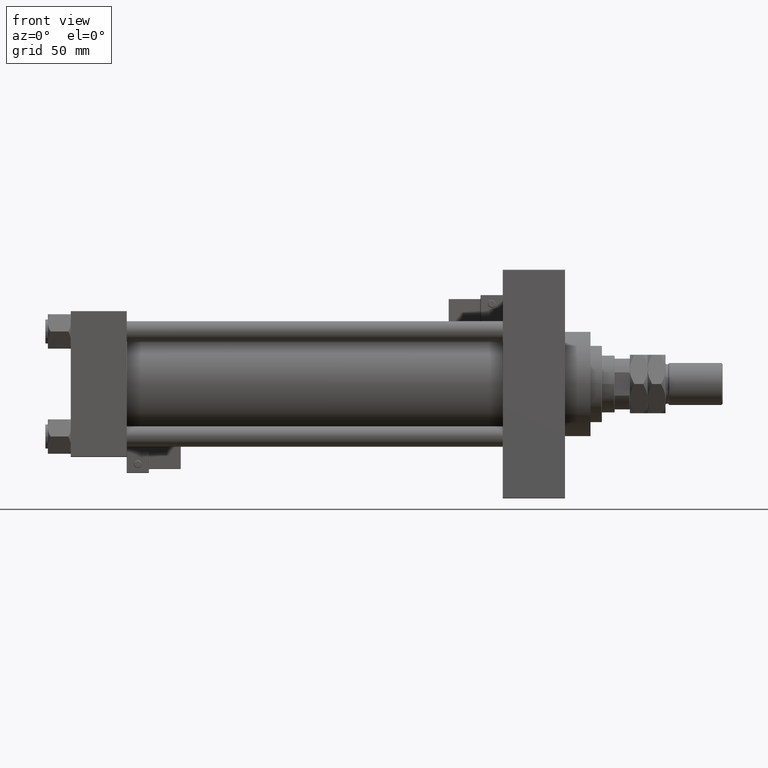
[diagram: clean part render]
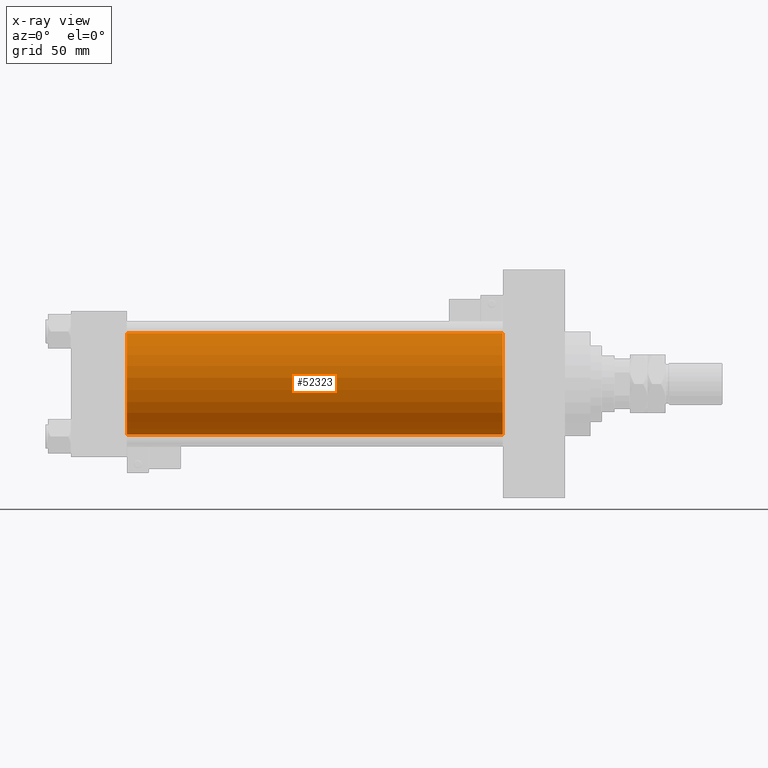
[diagram: x-ray — body ghosted, one internal face saturated and labeled with its STEP entity id]
A machine part, front view, then the same camera in x-ray: the body is ghosted and one INTERNAL B-rep face — a face not visible from any outside direction — is saturated and labeled: STEP entity #52323.
In plain terms, the highlighted cylindrical surface (partial cylindrical patch) has radius 40 mm, axis along (-1, -0, -0).
Its self-contained STEP definition (entity closure, byte-faithful):
#1695 = VERTEX_POINT ( 'NONE', #13229 ) ;
#2798 = FACE_OUTER_BOUND ( 'NONE', #35808, .T. ) ;
#3754 = CARTESIAN_POINT ( 'NONE',  ( 339.9999999999999432, -2.602085213965210642E-15, 40.00000000000000000 ) ) ;
#5821 = VERTEX_POINT ( 'NONE', #49543 ) ;
#12467 = DIRECTION ( 'NONE',  ( 1.000000000000000000, 0.000000000000000000, 0.000000000000000000 ) ) ;
#13229 = CARTESIAN_POINT ( 'NONE',  ( 44.00000000000000000, -2.602085213965210642E-15, 40.00000000000000000 ) ) ;
#14095 = LINE ( 'NONE', #34787, #18145 ) ;
#15341 = DIRECTION ( 'NONE',  ( 0.000000000000000000, 0.000000000000000000, 1.000000000000000000 ) ) ;
#16749 = DIRECTION ( 'NONE',  ( -1.000000000000000000, -0.000000000000000000, -0.000000000000000000 ) ) ;
#18145 = VECTOR ( 'NONE', #48096, 1000.000000000000000 ) ;
#19628 = EDGE_CURVE ( 'NONE', #1695, #5821, #49993, .T. ) ;
#21395 = LINE ( 'NONE', #24927, #49569 ) ;
#22780 = VERTEX_POINT ( 'NONE', #3754 ) ;
#23548 = CIRCLE ( 'NONE', #27888, 40.00000000000000000 ) ;
#24927 = CARTESIAN_POINT ( 'NONE',  ( 339.9999999999999432, 2.296501982624201990E-15, -40.00000000000000000 ) ) ;
#27888 = AXIS2_PLACEMENT_3D ( 'NONE', #50906, #39415, #38358 ) ;
#28274 = ORIENTED_EDGE ( 'NONE', *, *, #28355, .T. ) ;
#28355 = EDGE_CURVE ( 'NONE', #22780, #37073, #23548, .T. ) ;
#30939 = ORIENTED_EDGE ( 'NONE', *, *, #19628, .F. ) ;
#32457 = CARTESIAN_POINT ( 'NONE',  ( 339.9999999999999432, 2.296501982624201990E-15, -40.00000000000000000 ) ) ;
#34753 = ORIENTED_EDGE ( 'NONE', *, *, #52024, .T. ) ;
#34787 = CARTESIAN_POINT ( 'NONE',  ( 339.9999999999999432, -2.602085213965210642E-15, 40.00000000000000000 ) ) ;
#35754 = CYLINDRICAL_SURFACE ( 'NONE', #53079, 40.00000000000000000 ) ;
#35808 = EDGE_LOOP ( 'NONE', ( #28274, #34753, #30939, #45767 ) ) ;
#37073 = VERTEX_POINT ( 'NONE', #32457 ) ;
#38358 = DIRECTION ( 'NONE',  ( 0.000000000000000000, 0.000000000000000000, -1.000000000000000000 ) ) ;
#39415 = DIRECTION ( 'NONE',  ( 1.000000000000000000, 0.000000000000000000, 0.000000000000000000 ) ) ;
#41052 = DIRECTION ( 'NONE',  ( 0.000000000000000000, 0.000000000000000000, -1.000000000000000000 ) ) ;
#45767 = ORIENTED_EDGE ( 'NONE', *, *, #50171, .F. ) ;
#48096 = DIRECTION ( 'NONE',  ( -1.000000000000000000, -0.000000000000000000, -0.000000000000000000 ) ) ;
#48292 = DIRECTION ( 'NONE',  ( -1.000000000000000000, -0.000000000000000000, -0.000000000000000000 ) ) ;
#49543 = CARTESIAN_POINT ( 'NONE',  ( 44.00000000000000000, 2.296501982624201990E-15, -40.00000000000000000 ) ) ;
#49569 = VECTOR ( 'NONE', #16749, 1000.000000000000000 ) ;
#49993 = CIRCLE ( 'NONE', #50899, 40.00000000000000000 ) ;
#50171 = EDGE_CURVE ( 'NONE', #22780, #1695, #14095, .T. ) ;
#50899 = AXIS2_PLACEMENT_3D ( 'NONE', #53869, #12467, #41052 ) ;
#50906 = CARTESIAN_POINT ( 'NONE',  ( 339.9999999999999432, -2.602085213965210642E-15, 0.000000000000000000 ) ) ;
#52024 = EDGE_CURVE ( 'NONE', #37073, #5821, #21395, .T. ) ;
#52323 = ADVANCED_FACE ( 'NONE', ( #2798 ), #35754, .F. ) ;
#52654 = CARTESIAN_POINT ( 'NONE',  ( 339.9999999999999432, -2.602085213965210642E-15, 0.000000000000000000 ) ) ;
#53079 = AXIS2_PLACEMENT_3D ( 'NONE', #52654, #48292, #15341 ) ;
#53869 = CARTESIAN_POINT ( 'NONE',  ( 44.00000000000000000, -2.602085213965210642E-15, 0.000000000000000000 ) ) ;